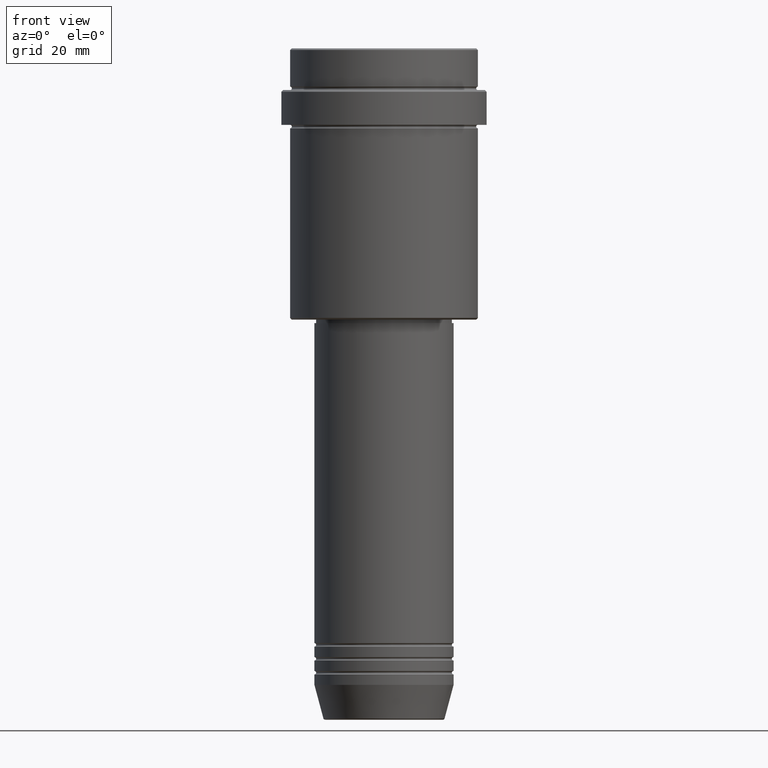
[diagram: clean part render]
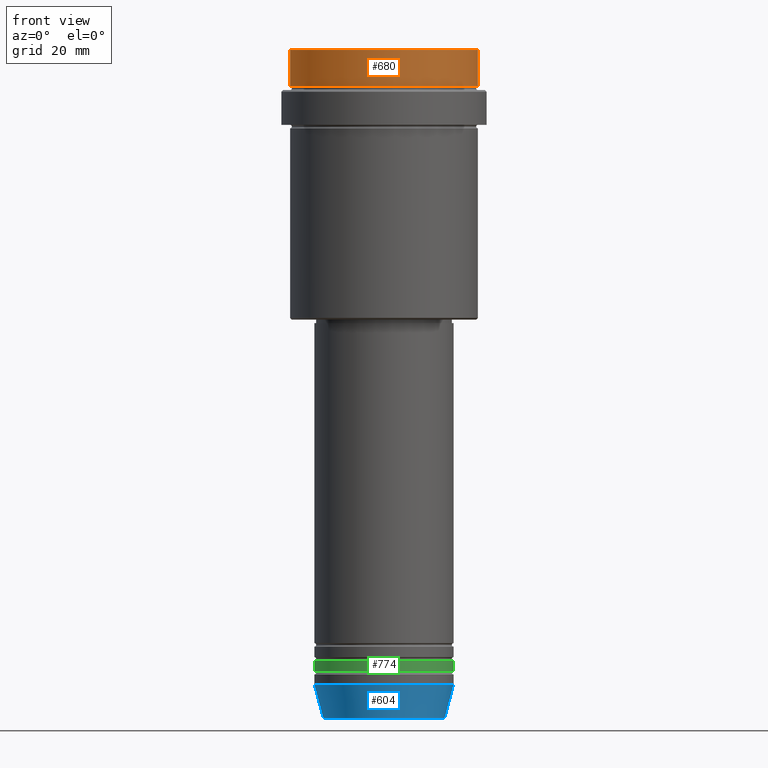
[diagram: same view with three faces highlighted in distinct colors, each labeled with its STEP entity id]
A machine part, front view with three faces highlighted in distinct colors.
Their STEP definitions:

[orange] entity #680 — the highlighted cylindrical surface (partial cylindrical patch) has radius 27 mm, axis along (-0, -0, 1).
#92 = DIRECTION ( 'NONE',  ( -0.000000000000000000, -0.000000000000000000, 1.000000000000000000 ) ) ;
#118 = VERTEX_POINT ( 'NONE', #1378 ) ;
#130 = CARTESIAN_POINT ( 'NONE',  ( -27.00000000000000355, 3.306546357697854128E-15, -11.00000000000000178 ) ) ;
#138 = CIRCLE ( 'NONE', #555, 27.00000000000000355 ) ;
#162 = CARTESIAN_POINT ( 'NONE',  ( 27.00000000000000355, 0.000000000000000000, 0.000000000000000000 ) ) ;
#222 = CYLINDRICAL_SURFACE ( 'NONE', #826, 27.00000000000000355 ) ;
#267 = DIRECTION ( 'NONE',  ( 0.000000000000000000, 0.000000000000000000, -1.000000000000000000 ) ) ;
#308 = DIRECTION ( 'NONE',  ( 1.000000000000000000, 0.000000000000000000, 0.000000000000000000 ) ) ;
#360 = VERTEX_POINT ( 'NONE', #673 ) ;
#389 = VERTEX_POINT ( 'NONE', #130 ) ;
#432 = ORIENTED_EDGE ( 'NONE', *, *, #734, .T. ) ;
#483 = VECTOR ( 'NONE', #681, 1000.000000000000000 ) ;
#530 = DIRECTION ( 'NONE',  ( -0.000000000000000000, -0.000000000000000000, 1.000000000000000000 ) ) ;
#546 = CARTESIAN_POINT ( 'NONE',  ( 27.00000000000000355, 0.000000000000000000, -11.00000000000000178 ) ) ;
#555 = AXIS2_PLACEMENT_3D ( 'NONE', #1050, #267, #721 ) ;
#560 = EDGE_CURVE ( 'NONE', #360, #118, #138, .T. ) ;
#586 = EDGE_CURVE ( 'NONE', #1281, #360, #1164, .T. ) ;
#644 = CARTESIAN_POINT ( 'NONE',  ( 0.000000000000000000, 0.000000000000000000, -11.00000000000000178 ) ) ;
#651 = FACE_OUTER_BOUND ( 'NONE', #724, .T. ) ;
#664 = AXIS2_PLACEMENT_3D ( 'NONE', #644, #530, #308 ) ;
#673 = CARTESIAN_POINT ( 'NONE',  ( 27.00000000000000355, 0.000000000000000000, -0.4999999999999796274 ) ) ;
#680 = ADVANCED_FACE ( 'NONE', ( #651 ), #222, .T. ) ;
#681 = DIRECTION ( 'NONE',  ( -0.000000000000000000, -0.000000000000000000, 1.000000000000000000 ) ) ;
#721 = DIRECTION ( 'NONE',  ( 1.000000000000000000, 0.000000000000000000, 0.000000000000000000 ) ) ;
#724 = EDGE_LOOP ( 'NONE', ( #819, #432, #832, #1017 ) ) ;
#734 = EDGE_CURVE ( 'NONE', #389, #1281, #877, .T. ) ;
#819 = ORIENTED_EDGE ( 'NONE', *, *, #831, .F. ) ;
#826 = AXIS2_PLACEMENT_3D ( 'NONE', #976, #92, #1090 ) ;
#831 = EDGE_CURVE ( 'NONE', #389, #118, #881, .T. ) ;
#832 = ORIENTED_EDGE ( 'NONE', *, *, #586, .T. ) ;
#877 = CIRCLE ( 'NONE', #664, 27.00000000000000355 ) ;
#881 = LINE ( 'NONE', #1119, #483 ) ;
#938 = DIRECTION ( 'NONE',  ( -0.000000000000000000, -0.000000000000000000, 1.000000000000000000 ) ) ;
#946 = VECTOR ( 'NONE', #938, 1000.000000000000000 ) ;
#976 = CARTESIAN_POINT ( 'NONE',  ( 0.000000000000000000, 0.000000000000000000, 0.000000000000000000 ) ) ;
#1017 = ORIENTED_EDGE ( 'NONE', *, *, #560, .T. ) ;
#1050 = CARTESIAN_POINT ( 'NONE',  ( 0.000000000000000000, 0.000000000000000000, -0.4999999999999796274 ) ) ;
#1090 = DIRECTION ( 'NONE',  ( 1.000000000000000000, 0.000000000000000000, 0.000000000000000000 ) ) ;
#1119 = CARTESIAN_POINT ( 'NONE',  ( -27.00000000000000355, 3.306546357697854128E-15, 0.000000000000000000 ) ) ;
#1164 = LINE ( 'NONE', #162, #946 ) ;
#1281 = VERTEX_POINT ( 'NONE', #546 ) ;
#1378 = CARTESIAN_POINT ( 'NONE',  ( -27.00000000000000355, 3.306546357697854128E-15, -0.4999999999999796274 ) ) ;

[blue] entity #604 — the highlighted conical surface has half-angle 15 deg.
#27 = CARTESIAN_POINT ( 'NONE',  ( -20.00000000000000000, 2.449293598294706513E-15, -183.0000000000000000 ) ) ;
#31 = DIRECTION ( 'NONE',  ( 0.2588190451025211836, 0.000000000000000000, 0.9659258262890680902 ) ) ;
#49 = EDGE_CURVE ( 'NONE', #1176, #465, #1337, .T. ) ;
#109 = LINE ( 'NONE', #129, #1373 ) ;
#129 = CARTESIAN_POINT ( 'NONE',  ( 20.00000000000000000, 0.000000000000000000, -183.0000000000000000 ) ) ;
#134 = VECTOR ( 'NONE', #1107, 1000.000000000000114 ) ;
#153 = DIRECTION ( 'NONE',  ( 1.000000000000000000, 0.000000000000000000, 0.000000000000000000 ) ) ;
#177 = DIRECTION ( 'NONE',  ( -0.000000000000000000, -0.000000000000000000, 1.000000000000000000 ) ) ;
#415 = AXIS2_PLACEMENT_3D ( 'NONE', #495, #1245, #1163 ) ;
#465 = VERTEX_POINT ( 'NONE', #27 ) ;
#495 = CARTESIAN_POINT ( 'NONE',  ( 0.000000000000000000, 0.000000000000000000, -183.0000000000000000 ) ) ;
#512 = ORIENTED_EDGE ( 'NONE', *, *, #49, .F. ) ;
#524 = DIRECTION ( 'NONE',  ( 1.000000000000000000, 0.000000000000000000, 0.000000000000000000 ) ) ;
#536 = CARTESIAN_POINT ( 'NONE',  ( -17.41980749484382329, 2.291302373663531915E-15, -192.6294095225512422 ) ) ;
#604 = ADVANCED_FACE ( 'NONE', ( #1148 ), #1403, .T. ) ;
#650 = EDGE_CURVE ( 'NONE', #1176, #1172, #1379, .T. ) ;
#702 = EDGE_LOOP ( 'NONE', ( #512, #817, #838, #917 ) ) ;
#726 = CARTESIAN_POINT ( 'NONE',  ( 17.41980749484382329, 0.000000000000000000, -192.6294095225512422 ) ) ;
#779 = CARTESIAN_POINT ( 'NONE',  ( -20.00000000000000000, 2.449293598294706513E-15, -183.0000000000000000 ) ) ;
#797 = CIRCLE ( 'NONE', #415, 20.00000000000000000 ) ;
#812 = EDGE_CURVE ( 'NONE', #1172, #1120, #109, .T. ) ;
#817 = ORIENTED_EDGE ( 'NONE', *, *, #650, .T. ) ;
#838 = ORIENTED_EDGE ( 'NONE', *, *, #812, .T. ) ;
#858 = DIRECTION ( 'NONE',  ( -0.000000000000000000, -0.000000000000000000, 1.000000000000000000 ) ) ;
#871 = CARTESIAN_POINT ( 'NONE',  ( 20.00000000000000000, 0.000000000000000000, -183.0000000000000000 ) ) ;
#917 = ORIENTED_EDGE ( 'NONE', *, *, #972, .F. ) ;
#972 = EDGE_CURVE ( 'NONE', #465, #1120, #797, .T. ) ;
#990 = AXIS2_PLACEMENT_3D ( 'NONE', #1372, #177, #153 ) ;
#1086 = CARTESIAN_POINT ( 'NONE',  ( 0.000000000000000000, 0.000000000000000000, -192.6294095225512422 ) ) ;
#1107 = DIRECTION ( 'NONE',  ( -0.2588190451025211836, 3.169619151431770488E-17, 0.9659258262890680902 ) ) ;
#1120 = VERTEX_POINT ( 'NONE', #871 ) ;
#1148 = FACE_OUTER_BOUND ( 'NONE', #702, .T. ) ;
#1163 = DIRECTION ( 'NONE',  ( 1.000000000000000000, 0.000000000000000000, 0.000000000000000000 ) ) ;
#1172 = VERTEX_POINT ( 'NONE', #726 ) ;
#1176 = VERTEX_POINT ( 'NONE', #536 ) ;
#1180 = AXIS2_PLACEMENT_3D ( 'NONE', #1086, #858, #524 ) ;
#1245 = DIRECTION ( 'NONE',  ( -0.000000000000000000, -0.000000000000000000, 1.000000000000000000 ) ) ;
#1337 = LINE ( 'NONE', #779, #134 ) ;
#1372 = CARTESIAN_POINT ( 'NONE',  ( 0.000000000000000000, 0.000000000000000000, -183.0000000000000000 ) ) ;
#1373 = VECTOR ( 'NONE', #31, 1000.000000000000114 ) ;
#1379 = CIRCLE ( 'NONE', #1180, 17.41980749484382329 ) ;
#1403 = CONICAL_SURFACE ( 'NONE', #990, 20.00000000000000000, 0.2617993877991499074 ) ;

[green] entity #774 — the highlighted cylindrical surface (partial cylindrical patch) has radius 20 mm, axis along (-0, -0, 1).
#10 = EDGE_LOOP ( 'NONE', ( #561, #770, #716, #179 ) ) ;
#36 = CARTESIAN_POINT ( 'NONE',  ( 20.00000000000000000, 0.000000000000000000, -178.9999999999998863 ) ) ;
#60 = CARTESIAN_POINT ( 'NONE',  ( -20.00000000000000000, 2.449293598294706513E-15, -175.9999999999998863 ) ) ;
#74 = VECTOR ( 'NONE', #1302, 1000.000000000000000 ) ;
#116 = CIRCLE ( 'NONE', #1218, 20.00000000000000000 ) ;
#170 = CARTESIAN_POINT ( 'NONE',  ( -20.00000000000000000, 2.449293598294706513E-15, -178.9999999999998863 ) ) ;
#179 = ORIENTED_EDGE ( 'NONE', *, *, #260, .F. ) ;
#195 = FACE_OUTER_BOUND ( 'NONE', #10, .T. ) ;
#260 = EDGE_CURVE ( 'NONE', #497, #882, #552, .T. ) ;
#327 = CARTESIAN_POINT ( 'NONE',  ( 0.000000000000000000, 0.000000000000000000, -175.9999999999998863 ) ) ;
#393 = AXIS2_PLACEMENT_3D ( 'NONE', #327, #544, #980 ) ;
#396 = AXIS2_PLACEMENT_3D ( 'NONE', #638, #742, #1293 ) ;
#497 = VERTEX_POINT ( 'NONE', #60 ) ;
#501 = VERTEX_POINT ( 'NONE', #170 ) ;
#544 = DIRECTION ( 'NONE',  ( -0.000000000000000000, -0.000000000000000000, 1.000000000000000000 ) ) ;
#552 = CIRCLE ( 'NONE', #393, 20.00000000000000000 ) ;
#561 = ORIENTED_EDGE ( 'NONE', *, *, #766, .F. ) ;
#638 = CARTESIAN_POINT ( 'NONE',  ( 0.000000000000000000, 0.000000000000000000, 0.000000000000000000 ) ) ;
#643 = VECTOR ( 'NONE', #1024, 1000.000000000000000 ) ;
#696 = EDGE_CURVE ( 'NONE', #501, #1062, #116, .T. ) ;
#716 = ORIENTED_EDGE ( 'NONE', *, *, #1005, .T. ) ;
#742 = DIRECTION ( 'NONE',  ( -0.000000000000000000, -0.000000000000000000, 1.000000000000000000 ) ) ;
#766 = EDGE_CURVE ( 'NONE', #501, #497, #1182, .T. ) ;
#770 = ORIENTED_EDGE ( 'NONE', *, *, #696, .T. ) ;
#774 = ADVANCED_FACE ( 'NONE', ( #195 ), #971, .T. ) ;
#875 = CARTESIAN_POINT ( 'NONE',  ( -20.00000000000000000, 2.449293598294706513E-15, 0.000000000000000000 ) ) ;
#882 = VERTEX_POINT ( 'NONE', #1321 ) ;
#948 = CARTESIAN_POINT ( 'NONE',  ( 20.00000000000000000, 0.000000000000000000, 0.000000000000000000 ) ) ;
#971 = CYLINDRICAL_SURFACE ( 'NONE', #396, 20.00000000000000000 ) ;
#980 = DIRECTION ( 'NONE',  ( 1.000000000000000000, 0.000000000000000000, 0.000000000000000000 ) ) ;
#1005 = EDGE_CURVE ( 'NONE', #1062, #882, #1048, .T. ) ;
#1024 = DIRECTION ( 'NONE',  ( -0.000000000000000000, -0.000000000000000000, 1.000000000000000000 ) ) ;
#1048 = LINE ( 'NONE', #948, #643 ) ;
#1062 = VERTEX_POINT ( 'NONE', #36 ) ;
#1182 = LINE ( 'NONE', #875, #74 ) ;
#1199 = DIRECTION ( 'NONE',  ( -0.000000000000000000, -0.000000000000000000, 1.000000000000000000 ) ) ;
#1218 = AXIS2_PLACEMENT_3D ( 'NONE', #1397, #1199, #1390 ) ;
#1293 = DIRECTION ( 'NONE',  ( 1.000000000000000000, 0.000000000000000000, 0.000000000000000000 ) ) ;
#1302 = DIRECTION ( 'NONE',  ( -0.000000000000000000, -0.000000000000000000, 1.000000000000000000 ) ) ;
#1321 = CARTESIAN_POINT ( 'NONE',  ( 20.00000000000000000, 0.000000000000000000, -175.9999999999998863 ) ) ;
#1390 = DIRECTION ( 'NONE',  ( 1.000000000000000000, 0.000000000000000000, 0.000000000000000000 ) ) ;
#1397 = CARTESIAN_POINT ( 'NONE',  ( 0.000000000000000000, 0.000000000000000000, -178.9999999999998863 ) ) ;